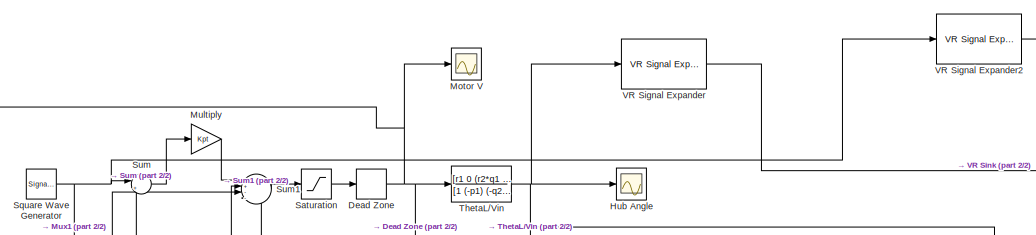
[diagram: root canvas - part 1/2, full width, top band]
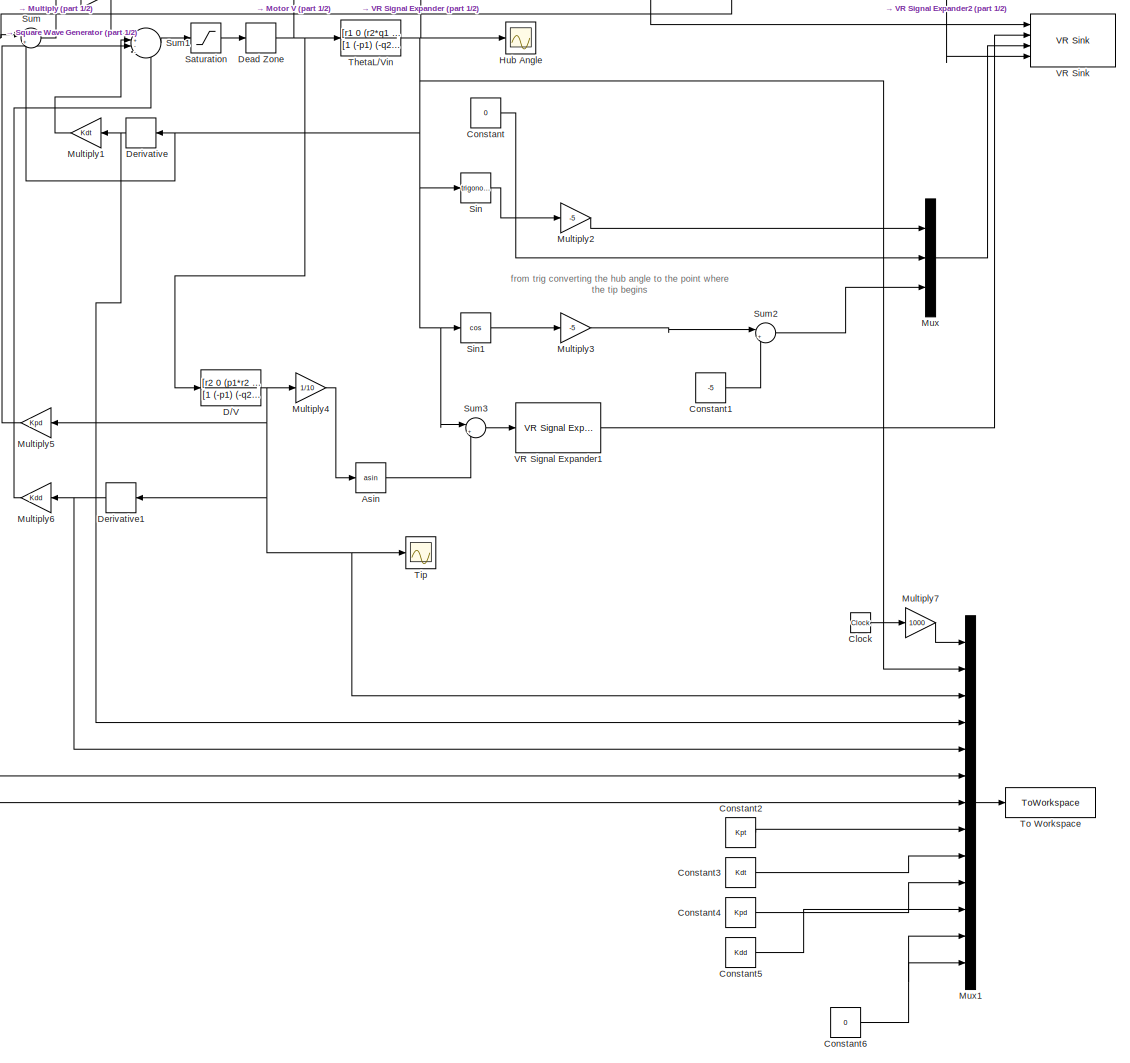
[diagram: root canvas - part 2/2, most of the canvas]
MODEL slx_d67d393a156b
KIND model
CONFIG AbsTol = auto
CONFIG EnableMultiTasking = off
CONFIG FixedStep = auto
CONFIG MaxStep = auto
CONFIG MinStep = auto
CONFIG RelTol = 1e-3
CONFIG SampleTimeConstraint = Unconstrained
CONFIG Solver = VariableStepAuto
CONFIG SolverName = VariableStepAuto
CONFIG StartTime = 0.0
CONFIG StopTime = 20
BLOCK [Trigonometry] Asin
  Operator = asin
  Ports = [1, 1]
BLOCK [Clock] Clock
  Decimation = 1
BLOCK [Constant] Constant
  Value = 0
BLOCK [Constant] Constant1
  Value = -5
BLOCK [Constant] Constant2
  Value = Kpt
BLOCK [Constant] Constant3
  Value = Kdt
BLOCK [Constant] Constant4
  Value = Kpd
BLOCK [Constant] Constant5
  Value = Kdd
BLOCK [Constant] Constant6
  Value = 0
BLOCK [TransferFcn] D//V
  Denominator = [1 (-p1) (-q2) (p1*q2 - q1*p2) 0]
  Numerator = [r2 0 (p1*r2 - p2*r1)]
BLOCK [DeadZone] Dead Zone
  LowerValue = -1*dead_zone
  UpperValue = dead_zone
BLOCK [Derivative] Derivative
  CoefficientInTFapproximation = 0
BLOCK [Derivative] Derivative1
  CoefficientInTFapproximation = 0
BLOCK [Scope] Hub Angle
  Floating = off
  NumInputPorts = 1
  Ports = [1]
  ScopeSpecificationString = Simulink.scopes.TimeScopeBlockCfg('CurrentConfiguration', extmgr.ConfigurationSet(extmgr.Configuration('Core','General UI',true),extmgr.Configuration('Core','Source UI',true),extmgr.Configuration('Sources','WiredSimulink',true),extmgr.Configuration('Visuals','Time Domain',true,'SerializedDisplays',{struct('MinYLimReal','-0.33239','MaxYLimReal','0.32554','YLabelReal','','MinYLimMag','0.00000','MaxY...<+1395ch>
BLOCK [Scope] Motor V
  Floating = off
  NumInputPorts = 1
  Ports = [1]
  ScopeSpecificationString = Simulink.scopes.TimeScopeBlockCfg('CurrentConfiguration', extmgr.ConfigurationSet(extmgr.Configuration('Core','General UI',true),extmgr.Configuration('Core','Source UI',true),extmgr.Configuration('Sources','WiredSimulink',true,'DataLoggingVariableName','ScopeData1'),extmgr.Configuration('Visuals','Time Domain',true,'SerializedDisplays',{struct('MinYLimReal','-7.15728','MaxYLimReal','7.16628','YLab...<+1387ch>
BLOCK [Gain] Multiply
  Gain = Kpt
  OutDataTypeStr = Inherit: Inherit via internal rule
  ParamDataTypeStr = Inherit: Inherit via internal rule
  SaturateOnIntegerOverflow = off
BLOCK [Gain] Multiply1
  Gain = Kdt
  OutDataTypeStr = Inherit: Inherit via internal rule
  ParamDataTypeStr = Inherit: Inherit via internal rule
  SaturateOnIntegerOverflow = off
BLOCK [Gain] Multiply2
  Gain = -5
  OutDataTypeStr = Inherit: Inherit via internal rule
  ParamDataTypeStr = Inherit: Inherit via internal rule
  SaturateOnIntegerOverflow = off
BLOCK [Gain] Multiply3
  Gain = -5
  OutDataTypeStr = Inherit: Inherit via internal rule
  ParamDataTypeStr = Inherit: Inherit via internal rule
  SaturateOnIntegerOverflow = off
BLOCK [Gain] Multiply4
  Gain = 1/10
  OutDataTypeStr = Inherit: Inherit via internal rule
  ParamDataTypeStr = Inherit: Inherit via internal rule
  SaturateOnIntegerOverflow = off
BLOCK [Gain] Multiply5
  Gain = Kpd
  OutDataTypeStr = Inherit: Inherit via internal rule
  ParamDataTypeStr = Inherit: Inherit via internal rule
  SaturateOnIntegerOverflow = off
BLOCK [Gain] Multiply6
  Gain = Kdd
  OutDataTypeStr = Inherit: Inherit via internal rule
  ParamDataTypeStr = Inherit: Inherit via internal rule
  SaturateOnIntegerOverflow = off
BLOCK [Gain] Multiply7
  Gain = 1000
  OutDataTypeStr = Inherit: Inherit via internal rule
  ParamDataTypeStr = Inherit: Inherit via internal rule
  SaturateOnIntegerOverflow = off
BLOCK [Mux] Mux
  DisplayOption = bar
  Inputs = 3
  Ports = [3, 1]
BLOCK [Mux] Mux1
  DisplayOption = bar
  Inputs = 13
  Ports = [13, 1]
BLOCK [Saturate] Saturation
  InputPortMap = u0
  LowerLimit = -1*saturation
  Ports = [1, 1]
  UpperLimit = saturation
BLOCK [Trigonometry] Sin
  Ports = [1, 1]
BLOCK [Trigonometry] Sin1
  Operator = cos
  Ports = [1, 1]
BLOCK [SignalGenerator] Square Wave Generator
  Amplitude = Amplitude
  Frequency = Frequency
  Ports = [0, 1]
  WaveForm = square
BLOCK [Sum] Sum
  IconShape = round
  InputSameDT = off
  Inputs = |+-
  OutDataTypeStr = Inherit: Inherit via internal rule
  Ports = [2, 1]
  SaturateOnIntegerOverflow = off
BLOCK [Sum] Sum1
  IconShape = round
  InputSameDT = off
  Inputs = |+---
  OutDataTypeStr = Inherit: Inherit via internal rule
  Ports = [4, 1]
  SaturateOnIntegerOverflow = off
BLOCK [Sum] Sum2
  IconShape = round
  InputSameDT = off
  Inputs = |++
  OutDataTypeStr = Inherit: Inherit via internal rule
  Ports = [2, 1]
  SaturateOnIntegerOverflow = off
BLOCK [Sum] Sum3
  IconShape = round
  InputSameDT = off
  Inputs = |++
  OutDataTypeStr = Inherit: Inherit via internal rule
  Ports = [2, 1]
  SaturateOnIntegerOverflow = off
BLOCK [TransferFcn] ThetaL//Vin 
  Denominator = [1 (-p1) (-q2) (p1*q2 - q1*p2) 0]
  Numerator = [r1 0 (r2*q1 - r1*q2)]
BLOCK [Scope] Tip
  Floating = off
  NumInputPorts = 1
  Ports = [1]
  ScopeSpecificationString = Simulink.scopes.TimeScopeBlockCfg('CurrentConfiguration', extmgr.ConfigurationSet(extmgr.Configuration('Core','General UI',true),extmgr.Configuration('Core','Source UI',true),extmgr.Configuration('Sources','WiredSimulink',true,'DataLoggingVariableName','ScopeData1','DataLoggingSaveFormat','Array','DataLoggingLimitDataPoints',true,'DataLoggingDecimation','1'),extmgr.Configuration('Visuals','Time Do...<+1632ch>
BLOCK [ToWorkspace] To Workspace
  FixptAsFi = on
  MaxDataPoints = inf
  Ports = [1]
  SampleTime = -1
  SaveFormat = Timeseries
  VariableName = simout
BLOCK [Reference] VR Signal Expander  REF=vrlib/VR Signal Expander
  Ports = [1, 1]
  SourceBlock = vrlib/VR Signal Expander
  SourceProductBaseCode = SL
  SourceProductName = Simulink
  SourceType = VR Signal Expander
BLOCK [Reference] VR Signal Expander1  REF=vrlib/VR Signal Expander
  Ports = [1, 1]
  SourceBlock = vrlib/VR Signal Expander
  SourceProductBaseCode = SL
  SourceProductName = Simulink
  SourceType = VR Signal Expander
BLOCK [Reference] VR Signal Expander2  REF=vrlib/VR Signal Expander
  Ports = [1, 1]
  SourceBlock = vrlib/VR Signal Expander
  SourceProductBaseCode = SL
  SourceProductName = Simulink
  SourceType = VR Signal Expander
BLOCK [Reference] VR Sink  REF=vrlib/VR Sink
  InstantiateOnLoad = on
  Ports = [4]
  SourceBlock = vrlib/VR Sink
  SourceProductBaseCode = SL
  SourceProductName = Simulink
  SourceType = Virtual Reality Sink
ANNOTATION (root): from trig converting the hub angle to the point where the tip begins
LINE Asin:1 -> Sum3:2
LINE Clock:1 -> Multiply7:1
LINE Constant1:1 -> Sum2:2
LINE Constant2:1 -> Mux1:8
LINE Constant3:1 -> Mux1:9
LINE Constant4:1 -> Mux1:10
LINE Constant5:1 -> Mux1:11
NET Constant6:1 -> Mux1:12, Mux1:13
LINE Constant:1 -> Mux:2
NET D//V:1 -> Derivative1:1, Multiply4:1, Multiply5:1, Mux1:3, Tip:1
NET Dead Zone:1 -> D//V:1, Motor V:1, Mux1:7, ThetaL//Vin :1
NET Derivative1:1 -> Multiply6:1, Mux1:5
NET Derivative:1 -> Multiply1:1, Mux1:4
LINE Multiply1:1 -> Sum1:2
LINE Multiply2:1 -> Mux:1
LINE Multiply3:1 -> Sum2:1
LINE Multiply4:1 -> Asin:1
LINE Multiply5:1 -> Sum1:3
LINE Multiply6:1 -> Sum1:4
LINE Multiply7:1 -> Mux1:1
LINE Multiply:1 -> Sum1:1
LINE Mux1:1 -> To Workspace:1
LINE Mux:1 -> VR Sink:3
LINE Saturation:1 -> Dead Zone:1
LINE Sin1:1 -> Multiply3:1
LINE Sin:1 -> Multiply2:1
NET Square Wave Generator:1 -> Mux1:6, Sum:1, VR Signal Expander2:1
LINE Sum1:1 -> Saturation:1
LINE Sum2:1 -> Mux:3
LINE Sum3:1 -> VR Signal Expander1:1
LINE Sum:1 -> Multiply:1
NET ThetaL//Vin :1 -> Derivative:1, Hub Angle:1, Mux1:2, Sin1:1, Sin:1, Sum3:1, Sum:2, VR Signal Expander:1
LINE VR Signal Expander1:1 -> VR Sink:2
LINE VR Signal Expander2:1 -> VR Sink:4
LINE VR Signal Expander:1 -> VR Sink:1
note: NET lines group one-source signal fan-out (src -> all destinations, sorted); 1:1 wires keep LINE
